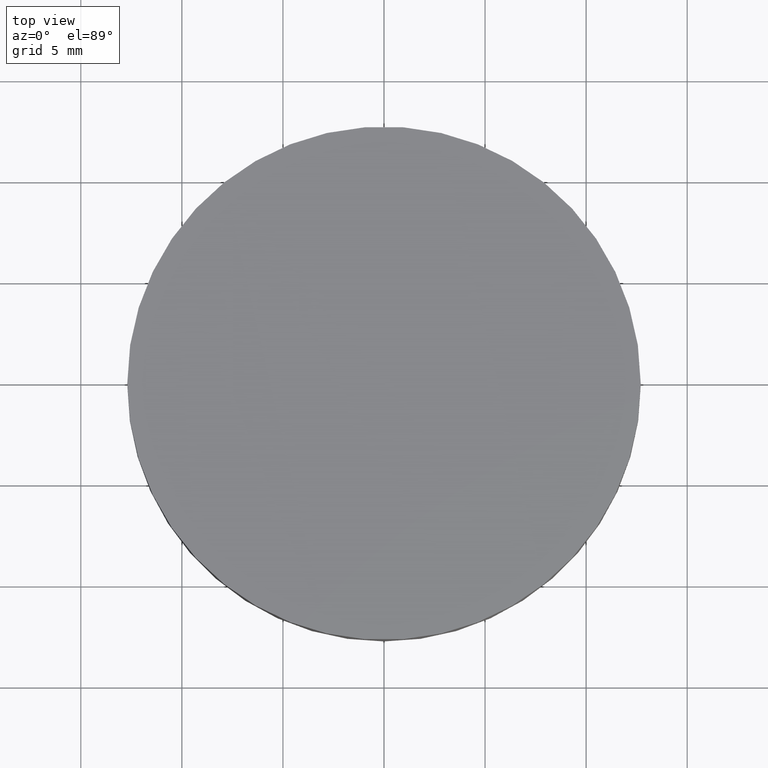
[diagram: clean part render]
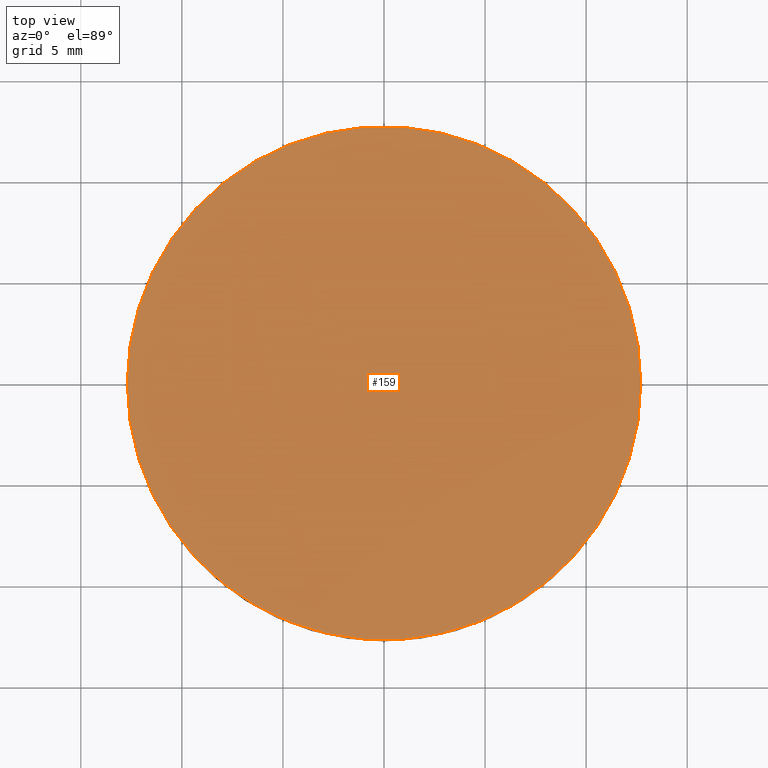
[diagram: same view with one face highlighted and labeled with its STEP entity id]
A machine part, top view. The second image highlights one B-rep face of the part: STEP entity #159.
In plain terms, the highlighted planar face has unit normal (0, 0, 1).
Its self-contained STEP definition (entity closure, byte-faithful):
#11 = CARTESIAN_POINT ( 'NONE',  ( 0.0000000000000000000, 26.11199999999999800, 3.000000000000000000 ) ) ;
#12 = EDGE_CURVE ( 'NONE', #130, #113, #203, .T. ) ;
#37 = AXIS2_PLACEMENT_3D ( 'NONE', #188, #79, #205 ) ;
#39 = FACE_OUTER_BOUND ( 'NONE', #100, .T. ) ;
#46 = DIRECTION ( 'NONE',  ( -0.0000000000000000000, -0.0000000000000000000, -1.000000000000000000 ) ) ;
#72 = ORIENTED_EDGE ( 'NONE', *, *, #12, .F. ) ;
#79 = DIRECTION ( 'NONE',  ( -0.0000000000000000000, -0.0000000000000000000, -1.000000000000000000 ) ) ;
#88 = PLANE ( 'NONE',  #92 ) ;
#92 = AXIS2_PLACEMENT_3D ( 'NONE', #11, #225, #180 ) ;
#100 = EDGE_LOOP ( 'NONE', ( #134, #72 ) ) ;
#105 = CARTESIAN_POINT ( 'NONE',  ( -12.69999999999999900, 3.997792089092478900E-015, 3.000000000000000400 ) ) ;
#113 = VERTEX_POINT ( 'NONE', #121 ) ;
#116 = CIRCLE ( 'NONE', #169, 12.69999999999999900 ) ;
#121 = CARTESIAN_POINT ( 'NONE',  ( 12.69999999999999900, 2.442490654175340100E-015, 3.000000000000000400 ) ) ;
#123 = EDGE_CURVE ( 'NONE', #113, #130, #116, .T. ) ;
#130 = VERTEX_POINT ( 'NONE', #105 ) ;
#134 = ORIENTED_EDGE ( 'NONE', *, *, #123, .F. ) ;
#139 = CARTESIAN_POINT ( 'NONE',  ( 4.996003610813200500E-016, 2.442490654175340100E-015, 3.000000000000000400 ) ) ;
#159 = ADVANCED_FACE ( 'NONE', ( #39 ), #88, .T. ) ;
#169 = AXIS2_PLACEMENT_3D ( 'NONE', #139, #46, #213 ) ;
#180 = DIRECTION ( 'NONE',  ( 1.000000000000000000, 0.0000000000000000000, -0.0000000000000000000 ) ) ;
#188 = CARTESIAN_POINT ( 'NONE',  ( 4.996003610813200500E-016, 2.442490654175340100E-015, 3.000000000000000400 ) ) ;
#203 = CIRCLE ( 'NONE', #37, 12.69999999999999900 ) ;
#205 = DIRECTION ( 'NONE',  ( 1.000000000000000000, 0.0000000000000000000, 0.0000000000000000000 ) ) ;
#213 = DIRECTION ( 'NONE',  ( 1.000000000000000000, 0.0000000000000000000, 0.0000000000000000000 ) ) ;
#225 = DIRECTION ( 'NONE',  ( 0.0000000000000000000, 0.0000000000000000000, 1.000000000000000000 ) ) ;